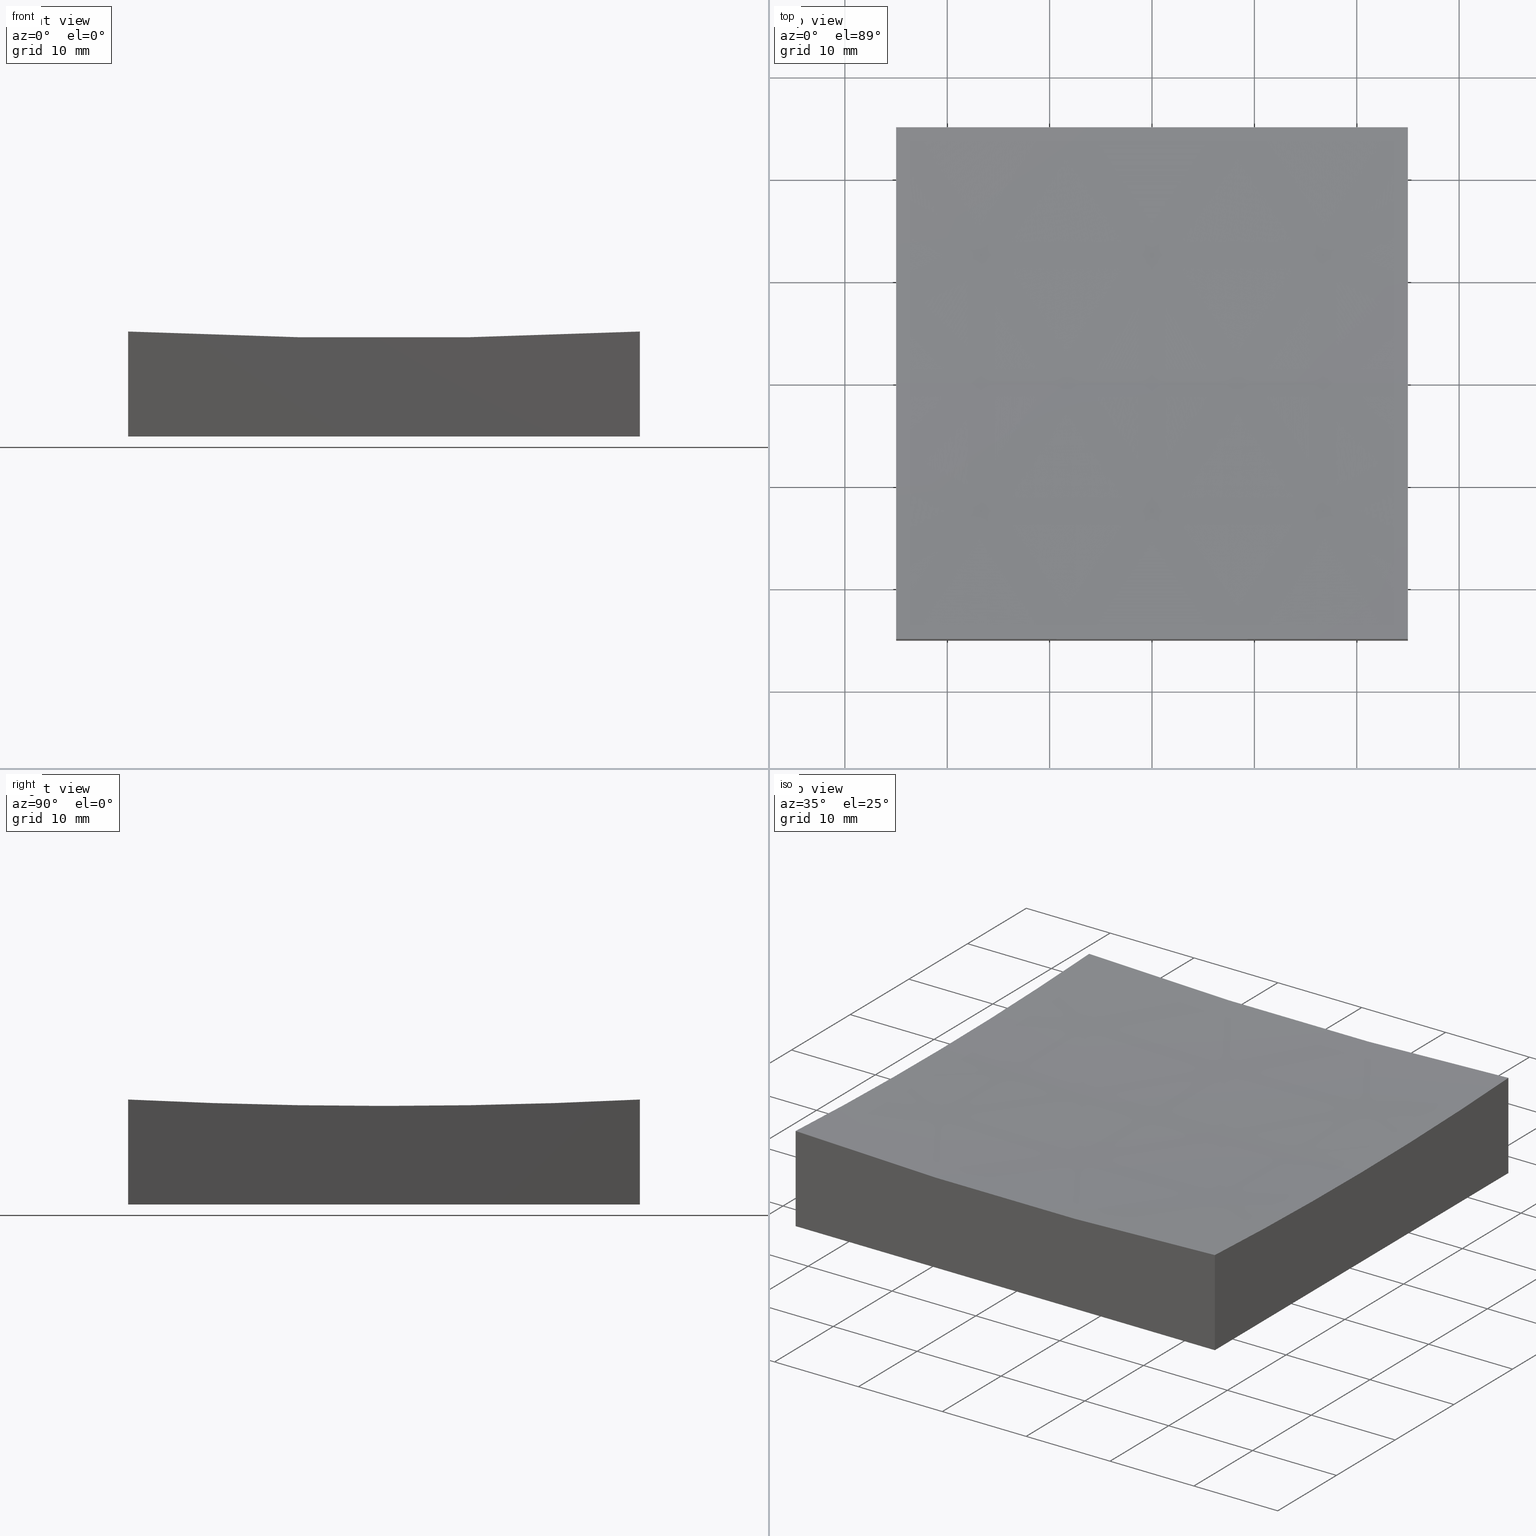
[diagram: canonical four-view strip — front | top / right | iso, engineering-drawing reading convention]
A machine part, canonical four-view strip (front | top / right | iso — engineering-drawing reading convention). The complete STEP part file that produces these views, byte-faithful:
ISO-10303-21;
HEADER;
FILE_DESCRIPTION (( 'STEP AP214' ),
    '1' );
FILE_NAME ('270055.STEP',
    '2020-06-08T05:48:22',
    ( '' ),
    ( '' ),
    'SwSTEP 2.0',
    'SolidWorks 2019',
    '' );
FILE_SCHEMA (( 'AUTOMOTIVE_DESIGN' ));
ENDSEC;

DATA;
#1 = DIRECTION ( 'NONE',  ( 0.0000000000000000000, 0.0000000000000000000, -1.000000000000000000 ) ) ;
#2 = EDGE_CURVE ( 'NONE', #209, #32, #12, .T. ) ;
#3 = AXIS2_PLACEMENT_3D ( 'NONE', #20, #79, #159 ) ;
#4 = CIRCLE ( 'NONE', #30, 499.3746088859544443 ) ;
#5 = DIRECTION ( 'NONE',  ( 1.000000000000000000, 0.0000000000000000000, 0.0000000000000000000 ) ) ;
#6 = DIRECTION ( 'NONE',  ( 1.000000000000000000, 6.938893903907228378E-17, -0.0000000000000000000 ) ) ;
#7 = AXIS2_PLACEMENT_3D ( 'NONE', #184, #92, #67 ) ;
#8 = ORIENTED_EDGE ( 'NONE', *, *, #144, .F. ) ;
#9 = VERTEX_POINT ( 'NONE', #155 ) ;
#10 = ORIENTED_EDGE ( 'NONE', *, *, #99, .F. ) ;
#11 = FACE_OUTER_BOUND ( 'NONE', #245, .T. ) ;
#12 = LINE ( 'NONE', #167, #179 ) ;
#13 = ORIENTED_EDGE ( 'NONE', *, *, #77, .T. ) ;
#14 = DIRECTION ( 'NONE',  ( -0.0000000000000000000, -0.0000000000000000000, -1.000000000000000000 ) ) ;
#15 =( NAMED_UNIT ( * ) PLANE_ANGLE_UNIT ( ) SI_UNIT ( $, .RADIAN. ) );
#16 = ORIENTED_EDGE ( 'NONE', *, *, #63, .T. ) ;
#17 = PRESENTATION_LAYER_ASSIGNMENT (  '', '', ( #190 ) ) ;
#18 = DIRECTION ( 'NONE',  ( 1.000000000000000000, 6.938893903907228378E-17, -0.0000000000000000000 ) ) ;
#19 = ORIENTED_EDGE ( 'NONE', *, *, #144, .T. ) ;
#20 = CARTESIAN_POINT ( 'NONE',  ( 6.233452207660027876E-14, 0.0000000000000000000, 509.0000000000000000 ) ) ;
#21 = LINE ( 'NONE', #41, #81 ) ;
#22 = STYLED_ITEM ( 'NONE', ( #111 ), #177 ) ;
#23 = PRODUCT_DEFINITION ( 'δ֪', '', #223, #140 ) ;
#24 =( GEOMETRIC_REPRESENTATION_CONTEXT ( 3 ) GLOBAL_UNCERTAINTY_ASSIGNED_CONTEXT ( ( #162 ) ) GLOBAL_UNIT_ASSIGNED_CONTEXT ( ( #89, #205, #224 ) ) REPRESENTATION_CONTEXT ( 'NONE', 'WORKASPACE' ) );
#25 = UNCERTAINTY_MEASURE_WITH_UNIT (LENGTH_MEASURE( 1.000000000000000082E-05 ), #200, 'distance_accuracy_value', 'NONE');
#26 = EDGE_CURVE ( 'NONE', #90, #221, #103, .T. ) ;
#27 = DIRECTION ( 'NONE',  ( -6.947583818275299433E-17, 1.000000000000000000, 0.0000000000000000000 ) ) ;
#28 = CARTESIAN_POINT ( 'NONE',  ( 0.0000000000000000000, 0.0000000000000000000, 0.0000000000000000000 ) ) ;
#29 = CARTESIAN_POINT ( 'NONE',  ( 6.233452207660027876E-14, 0.0000000000000000000, 509.0000000000000000 ) ) ;
#30 = AXIS2_PLACEMENT_3D ( 'NONE', #192, #201, #38 ) ;
#31 = VERTEX_POINT ( 'NONE', #169 ) ;
#32 = VERTEX_POINT ( 'NONE', #150 ) ;
#33 = DIRECTION ( 'NONE',  ( 1.000000000000000000, 0.0000000000000000000, 0.0000000000000000000 ) ) ;
#34 = DIRECTION ( 'NONE',  ( 6.938893903907228378E-17, -1.000000000000000000, 0.0000000000000000000 ) ) ;
#35 = ORIENTED_EDGE ( 'NONE', *, *, #123, .F. ) ;
#36 = DIRECTION ( 'NONE',  ( 1.000000000000000000, 6.938893903907228378E-17, -0.0000000000000000000 ) ) ;
#37 = DIRECTION ( 'NONE',  ( 1.000000000000000000, 6.938893903907228378E-17, -0.0000000000000000000 ) ) ;
#38 = DIRECTION ( 'NONE',  ( 0.0000000000000000000, 0.0000000000000000000, 1.000000000000000000 ) ) ;
#39 = VECTOR ( 'NONE', #252, 1000.000000000000000 ) ;
#40 = DIRECTION ( 'NONE',  ( 0.0000000000000000000, -1.000000000000000000, -0.0000000000000000000 ) ) ;
#41 = CARTESIAN_POINT ( 'NONE',  ( -25.00000000000000000, -25.00000000000000711, 50.00000000000000000 ) ) ;
#42 = CARTESIAN_POINT ( 'NONE',  ( 9.202173048582265139E-14, 0.0000000000000000000, 9.000000000000007105 ) ) ;
#43 = AXIS2_PLACEMENT_3D ( 'NONE', #168, #153, #27 ) ;
#44 = MANIFOLD_SOLID_BREP ( '�г�-��ת2', #235 ) ;
#45 = EDGE_CURVE ( 'NONE', #174, #31, #4, .T. ) ;
#46 = AXIS2_PLACEMENT_3D ( 'NONE', #28, #107, #239 ) ;
#47 = DIRECTION ( 'NONE',  ( -0.0000000000000000000, 1.000000000000000000, 0.0000000000000000000 ) ) ;
#48 = PRODUCT_RELATED_PRODUCT_CATEGORY ( 'part', '', ( #151 ) ) ;
#49 = SURFACE_SIDE_STYLE ('',( #52 ) ) ;
#50 = ORIENTED_EDGE ( 'NONE', *, *, #99, .T. ) ;
#51 = ORIENTED_EDGE ( 'NONE', *, *, #77, .F. ) ;
#52 = SURFACE_STYLE_FILL_AREA ( #82 ) ;
#53 = AXIS2_PLACEMENT_3D ( 'NONE', #121, #37, #175 ) ;
#54 = ORIENTED_EDGE ( 'NONE', *, *, #164, .F. ) ;
#55 = EDGE_LOOP ( 'NONE', ( #152, #16, #188, #51 ) ) ;
#56 = CARTESIAN_POINT ( 'NONE',  ( -25.00000000000000355, -1.734723475976811630E-15, 509.0000000000000000 ) ) ;
#57 = PLANE ( 'NONE',  #183 ) ;
#58 = ORIENTED_EDGE ( 'NONE', *, *, #2, .T. ) ;
#59 = CARTESIAN_POINT ( 'NONE',  ( -25.00000000000000355, 24.99999999999999645, 50.00000000000000000 ) ) ;
#60 = VECTOR ( 'NONE', #136, 1000.000000000000000 ) ;
#61 = DIRECTION ( 'NONE',  ( -6.947583818275299433E-17, 1.000000000000000000, 0.0000000000000000000 ) ) ;
#62 = CARTESIAN_POINT ( 'NONE',  ( -25.00000000000000000, -25.00000000000000711, 50.00000000000000000 ) ) ;
#63 = EDGE_CURVE ( 'NONE', #174, #104, #118, .T. ) ;
#64 = ADVANCED_FACE ( 'NONE', ( #100 ), #156, .F. ) ;
#65 = SURFACE_SIDE_STYLE ('',( #212 ) ) ;
#66 = ORIENTED_EDGE ( 'NONE', *, *, #120, .F. ) ;
#67 = DIRECTION ( 'NONE',  ( -1.000000000000000000, 0.0000000000000000000, -0.0000000000000000000 ) ) ;
#68 = CARTESIAN_POINT ( 'NONE',  ( 24.99999999999999645, 24.99999999999999645, 50.00000000000000000 ) ) ;
#69 = ORIENTED_EDGE ( 'NONE', *, *, #166, .T. ) ;
#70 = CARTESIAN_POINT ( 'NONE',  ( 24.99999999999999645, 24.99999999999999645, 50.00000000000000000 ) ) ;
#71 = SURFACE_STYLE_USAGE ( .BOTH. , #65 ) ;
#72 = ORIENTED_EDGE ( 'NONE', *, *, #45, .T. ) ;
#73 = DIRECTION ( 'NONE',  ( 1.224646799147353207E-16, 1.000000000000000000, -2.275299625143731854E-34 ) ) ;
#74 = ADVANCED_FACE ( 'NONE', ( #226 ), #196, .T. ) ;
#75 = CARTESIAN_POINT ( 'NONE',  ( 6.233452207660027876E-14, 0.0000000000000000000, 509.0000000000000000 ) ) ;
#76 = DIRECTION ( 'NONE',  ( -6.947583818275299433E-17, 1.000000000000000000, 0.0000000000000000000 ) ) ;
#77 = EDGE_CURVE ( 'NONE', #31, #209, #114, .T. ) ;
#78 = VECTOR ( 'NONE', #96, 1000.000000000000000 ) ;
#79 = DIRECTION ( 'NONE',  ( -0.0000000000000000000, 1.000000000000000000, 0.0000000000000000000 ) ) ;
#80 = COLOUR_RGB ( '',1.000000000000000000, 1.000000000000000000, 1.000000000000000000 ) ;
#81 = VECTOR ( 'NONE', #213, 1000.000000000000000 ) ;
#82 = FILL_AREA_STYLE ('',( #249 ) ) ;
#83 = APPLICATION_PROTOCOL_DEFINITION ( 'draft international standard', 'automotive_design', 1998, #181 ) ;
#84 = ORIENTED_EDGE ( 'NONE', *, *, #26, .T. ) ;
#85 = FACE_OUTER_BOUND ( 'NONE', #247, .T. ) ;
#86 = ORIENTED_EDGE ( 'NONE', *, *, #233, .T. ) ;
#87 = VERTEX_POINT ( 'NONE', #91 ) ;
#88 = CARTESIAN_POINT ( 'NONE',  ( -25.00000000000000000, -25.00000000000000711, 10.25156641849994621 ) ) ;
#89 =( LENGTH_UNIT ( ) NAMED_UNIT ( * ) SI_UNIT ( .MILLI., .METRE. ) );
#90 = VERTEX_POINT ( 'NONE', #173 ) ;
#91 = CARTESIAN_POINT ( 'NONE',  ( -25.00000000000000355, 3.061616997868391720E-15, 9.625391114045534380 ) ) ;
#92 = DIRECTION ( 'NONE',  ( 0.0000000000000000000, 0.0000000000000000000, -1.000000000000000000 ) ) ;
#93 = AXIS2_PLACEMENT_3D ( 'NONE', #59, #117, #154 ) ;
#94 = ORIENTED_EDGE ( 'NONE', *, *, #95, .F. ) ;
#95 = EDGE_CURVE ( 'NONE', #90, #189, #122, .T. ) ;
#96 = DIRECTION ( 'NONE',  ( 6.938893903907228378E-17, -1.000000000000000000, 0.0000000000000000000 ) ) ;
#97 = EDGE_LOOP ( 'NONE', ( #35, #127, #147, #13, #58 ) ) ;
#98 = CARTESIAN_POINT ( 'NONE',  ( -25.00000000000000000, -25.00000000000000711, 0.0000000000000000000 ) ) ;
#99 = EDGE_CURVE ( 'NONE', #104, #9, #248, .T. ) ;
#100 = FACE_OUTER_BOUND ( 'NONE', #97, .T. ) ;
#101 = VECTOR ( 'NONE', #14, 1000.000000000000000 ) ;
#102 = CIRCLE ( 'NONE', #43, 499.3746088859545011 ) ;
#103 = CIRCLE ( 'NONE', #110, 499.3746088859544443 ) ;
#104 = VERTEX_POINT ( 'NONE', #191 ) ;
#105 = CIRCLE ( 'NONE', #158, 500.0000000000000000 ) ;
#106 =( NAMED_UNIT ( * ) PLANE_ANGLE_UNIT ( ) SI_UNIT ( $, .RADIAN. ) );
#107 = DIRECTION ( 'NONE',  ( 0.0000000000000000000, 0.0000000000000000000, 1.000000000000000000 ) ) ;
#108 = ORIENTED_EDGE ( 'NONE', *, *, #2, .F. ) ;
#109 = ORIENTED_EDGE ( 'NONE', *, *, #161, .T. ) ;
#110 = AXIS2_PLACEMENT_3D ( 'NONE', #116, #112, #130 ) ;
#111 = PRESENTATION_STYLE_ASSIGNMENT (( #204 ) ) ;
#112 = DIRECTION ( 'NONE',  ( 0.0000000000000000000, 1.000000000000000000, 0.0000000000000000000 ) ) ;
#113 = ORIENTED_EDGE ( 'NONE', *, *, #197, .F. ) ;
#114 = LINE ( 'NONE', #193, #101 ) ;
#115 = CARTESIAN_POINT ( 'NONE',  ( 25.00000000000000000, -25.00000000000000711, 50.00000000000000000 ) ) ;
#116 = CARTESIAN_POINT ( 'NONE',  ( 6.233452207660027876E-14, -25.00000000000000711, 509.0000000000000000 ) ) ;
#117 = DIRECTION ( 'NONE',  ( 0.0000000000000000000, 1.000000000000000000, 0.0000000000000000000 ) ) ;
#118 = LINE ( 'NONE', #68, #60 ) ;
#119 = SPHERICAL_SURFACE ( 'NONE', #3, 500.0000000000000000 ) ;
#120 = EDGE_CURVE ( 'NONE', #189, #174, #214, .T. ) ;
#121 = CARTESIAN_POINT ( 'NONE',  ( -25.00000000000000355, 24.99999999999999645, 50.00000000000000000 ) ) ;
#122 = CIRCLE ( 'NONE', #180, 499.3746088859545011 ) ;
#123 = EDGE_CURVE ( 'NONE', #221, #32, #21, .T. ) ;
#124 = AXIS2_PLACEMENT_3D ( 'NONE', #56, #176, #139 ) ;
#125 = VECTOR ( 'NONE', #33, 1000.000000000000000 ) ;
#126 = DIRECTION ( 'NONE',  ( -6.938893903907228378E-17, 1.000000000000000000, 0.0000000000000000000 ) ) ;
#127 = ORIENTED_EDGE ( 'NONE', *, *, #164, .T. ) ;
#128 = COLOUR_RGB ( '',1.000000000000000000, 1.000000000000000000, 1.000000000000000000 ) ;
#129 = CARTESIAN_POINT ( 'NONE',  ( -25.00000000000000355, 24.99999999999999645, 0.0000000000000000000 ) ) ;
#130 = DIRECTION ( 'NONE',  ( 0.0000000000000000000, 0.0000000000000000000, 1.000000000000000000 ) ) ;
#131 = EDGE_LOOP ( 'NONE', ( #185, #19, #135, #72, #148 ) ) ;
#132 = CARTESIAN_POINT ( 'NONE',  ( 24.99999999999999645, 0.0000000000000000000, 9.625391114045534380 ) ) ;
#133 = PRESENTATION_STYLE_ASSIGNMENT (( #71 ) ) ;
#134 = CARTESIAN_POINT ( 'NONE',  ( 24.99999999999999645, 1.734723475976802756E-15, 509.0000000000000000 ) ) ;
#135 = ORIENTED_EDGE ( 'NONE', *, *, #120, .T. ) ;
#136 = DIRECTION ( 'NONE',  ( -0.0000000000000000000, -0.0000000000000000000, -1.000000000000000000 ) ) ;
#137 =( GEOMETRIC_REPRESENTATION_CONTEXT ( 3 ) GLOBAL_UNCERTAINTY_ASSIGNED_CONTEXT ( ( #238 ) ) GLOBAL_UNIT_ASSIGNED_CONTEXT ( ( #145, #106, #241 ) ) REPRESENTATION_CONTEXT ( 'NONE', 'WORKASPACE' ) );
#138 = LINE ( 'NONE', #98, #39 ) ;
#139 = DIRECTION ( 'NONE',  ( -6.947583818275299433E-17, 1.000000000000000000, 0.0000000000000000000 ) ) ;
#140 = PRODUCT_DEFINITION_CONTEXT ( 'detailed design', #217, 'design' ) ;
#141 = CIRCLE ( 'NONE', #124, 499.3746088859545011 ) ;
#142 = APPLICATION_PROTOCOL_DEFINITION ( 'draft international standard', 'automotive_design', 1998, #217 ) ;
#143 = AXIS2_PLACEMENT_3D ( 'NONE', #29, #47, #5 ) ;
#144 = EDGE_CURVE ( 'NONE', #186, #189, #218, .T. ) ;
#145 =( LENGTH_UNIT ( ) NAMED_UNIT ( * ) SI_UNIT ( .MILLI., .METRE. ) );
#146 = PLANE ( 'NONE',  #7 ) ;
#147 = ORIENTED_EDGE ( 'NONE', *, *, #211, .T. ) ;
#148 = ORIENTED_EDGE ( 'NONE', *, *, #211, .F. ) ;
#149 = ADVANCED_FACE ( 'NONE', ( #228 ), #119, .F. ) ;
#150 = CARTESIAN_POINT ( 'NONE',  ( -25.00000000000000000, -25.00000000000000711, 0.0000000000000000000 ) ) ;
#151 = PRODUCT ( '270055', '270055', '', ( #219 ) ) ;
#152 = ORIENTED_EDGE ( 'NONE', *, *, #45, .F. ) ;
#153 = DIRECTION ( 'NONE',  ( 1.000000000000000000, 6.938893903907228378E-17, -0.0000000000000000000 ) ) ;
#154 = DIRECTION ( 'NONE',  ( 0.0000000000000000000, -0.0000000000000000000, 1.000000000000000000 ) ) ;
#155 = CARTESIAN_POINT ( 'NONE',  ( 25.00000000000000000, -25.00000000000000711, 0.0000000000000000000 ) ) ;
#156 = PLANE ( 'NONE',  #53 ) ;
#157 = CARTESIAN_POINT ( 'NONE',  ( 6.233452207660027876E-14, 0.0000000000000000000, 509.0000000000000000 ) ) ;
#158 = AXIS2_PLACEMENT_3D ( 'NONE', #157, #73, #225 ) ;
#159 = DIRECTION ( 'NONE',  ( 1.000000000000000000, 0.0000000000000000000, 0.0000000000000000000 ) ) ;
#160 = MECHANICAL_DESIGN_GEOMETRIC_PRESENTATION_REPRESENTATION (  '', ( #190 ), #24 ) ;
#161 = EDGE_CURVE ( 'NONE', #32, #9, #138, .T. ) ;
#162 = UNCERTAINTY_MEASURE_WITH_UNIT (LENGTH_MEASURE( 1.000000000000000082E-05 ), #89, 'distance_accuracy_value', 'NONE');
#163 = PRESENTATION_LAYER_ASSIGNMENT (  '', '', ( #22 ) ) ;
#164 = EDGE_CURVE ( 'NONE', #221, #87, #141, .T. ) ;
#165 = SPHERICAL_SURFACE ( 'NONE', #143, 500.0000000000000000 ) ;
#166 = EDGE_CURVE ( 'NONE', #186, #87, #105, .T. ) ;
#167 = CARTESIAN_POINT ( 'NONE',  ( -25.00000000000000355, 24.99999999999999645, 0.0000000000000000000 ) ) ;
#168 = CARTESIAN_POINT ( 'NONE',  ( -25.00000000000000355, -1.734723475976811630E-15, 509.0000000000000000 ) ) ;
#169 = CARTESIAN_POINT ( 'NONE',  ( -25.00000000000000711, 24.99999999999999645, 10.25156641849989114 ) ) ;
#170 = ORIENTED_EDGE ( 'NONE', *, *, #197, .T. ) ;
#171 = LINE ( 'NONE', #129, #125 ) ;
#172 = ORIENTED_EDGE ( 'NONE', *, *, #63, .F. ) ;
#173 = CARTESIAN_POINT ( 'NONE',  ( 25.00000000000000000, -25.00000000000000711, 10.25156641849989114 ) ) ;
#174 = VERTEX_POINT ( 'NONE', #178 ) ;
#175 = DIRECTION ( 'NONE',  ( -6.938893903907228378E-17, 1.000000000000000000, 0.0000000000000000000 ) ) ;
#176 = DIRECTION ( 'NONE',  ( 1.000000000000000000, 6.938893903907228378E-17, -0.0000000000000000000 ) ) ;
#177 = ADVANCED_BREP_SHAPE_REPRESENTATION ( '270055', ( #44, #46 ), #240 ) ;
#178 = CARTESIAN_POINT ( 'NONE',  ( 24.99999999999999645, 24.99999999999999645, 10.25156641849989114 ) ) ;
#179 = VECTOR ( 'NONE', #34, 1000.000000000000000 ) ;
#180 = AXIS2_PLACEMENT_3D ( 'NONE', #134, #18, #61 ) ;
#181 = APPLICATION_CONTEXT ( 'automotive_design' ) ;
#182 = ORIENTED_EDGE ( 'NONE', *, *, #123, .T. ) ;
#183 = AXIS2_PLACEMENT_3D ( 'NONE', #62, #216, #207 ) ;
#184 = CARTESIAN_POINT ( 'NONE',  ( 0.0000000000000000000, 0.0000000000000000000, 0.0000000000000000000 ) ) ;
#185 = ORIENTED_EDGE ( 'NONE', *, *, #166, .F. ) ;
#186 = VERTEX_POINT ( 'NONE', #42 ) ;
#187 = DIRECTION ( 'NONE',  ( -0.0000000000000000000, -0.0000000000000000000, -1.000000000000000000 ) ) ;
#188 = ORIENTED_EDGE ( 'NONE', *, *, #233, .F. ) ;
#189 = VERTEX_POINT ( 'NONE', #132 ) ;
#190 = STYLED_ITEM ( 'NONE', ( #133 ), #44 ) ;
#191 = CARTESIAN_POINT ( 'NONE',  ( 24.99999999999999645, 24.99999999999999645, 0.0000000000000000000 ) ) ;
#192 = CARTESIAN_POINT ( 'NONE',  ( 6.233452207660027876E-14, 24.99999999999999645, 509.0000000000000000 ) ) ;
#193 = CARTESIAN_POINT ( 'NONE',  ( -25.00000000000000355, 24.99999999999999645, 50.00000000000000000 ) ) ;
#194 = ORIENTED_EDGE ( 'NONE', *, *, #95, .T. ) ;
#195 = ADVANCED_FACE ( 'NONE', ( #230 ), #57, .F. ) ;
#196 = PLANE ( 'NONE',  #93 ) ;
#197 = EDGE_CURVE ( 'NONE', #90, #9, #210, .T. ) ;
#198 = VECTOR ( 'NONE', #187, 1000.000000000000000 ) ;
#199 = ADVANCED_FACE ( 'NONE', ( #85 ), #246, .T. ) ;
#200 =( LENGTH_UNIT ( ) NAMED_UNIT ( * ) SI_UNIT ( .MILLI., .METRE. ) );
#201 = DIRECTION ( 'NONE',  ( 0.0000000000000000000, 1.000000000000000000, 0.0000000000000000000 ) ) ;
#202 = EDGE_LOOP ( 'NONE', ( #113, #84, #182, #109 ) ) ;
#203 = AXIS2_PLACEMENT_3D ( 'NONE', #251, #36, #76 ) ;
#204 = SURFACE_STYLE_USAGE ( .BOTH. , #49 ) ;
#205 =( NAMED_UNIT ( * ) PLANE_ANGLE_UNIT ( ) SI_UNIT ( $, .RADIAN. ) );
#206 = ORIENTED_EDGE ( 'NONE', *, *, #161, .F. ) ;
#207 = DIRECTION ( 'NONE',  ( 0.0000000000000000000, -0.0000000000000000000, 1.000000000000000000 ) ) ;
#208 =( NAMED_UNIT ( * ) SI_UNIT ( $, .STERADIAN. ) SOLID_ANGLE_UNIT ( ) );
#209 = VERTEX_POINT ( 'NONE', #220 ) ;
#210 = LINE ( 'NONE', #115, #198 ) ;
#211 = EDGE_CURVE ( 'NONE', #87, #31, #102, .T. ) ;
#212 = SURFACE_STYLE_FILL_AREA ( #250 ) ;
#213 = DIRECTION ( 'NONE',  ( -0.0000000000000000000, -0.0000000000000000000, -1.000000000000000000 ) ) ;
#214 = CIRCLE ( 'NONE', #203, 499.3746088859545011 ) ;
#215 = CARTESIAN_POINT ( 'NONE',  ( 24.99999999999999645, 24.99999999999999645, 0.0000000000000000000 ) ) ;
#216 = DIRECTION ( 'NONE',  ( 0.0000000000000000000, 1.000000000000000000, 0.0000000000000000000 ) ) ;
#217 = APPLICATION_CONTEXT ( 'automotive_design' ) ;
#218 = CIRCLE ( 'NONE', #234, 500.0000000000000000 ) ;
#219 = PRODUCT_CONTEXT ( 'NONE', #181, 'mechanical' ) ;
#220 = CARTESIAN_POINT ( 'NONE',  ( -25.00000000000000355, 24.99999999999999645, 0.0000000000000000000 ) ) ;
#221 = VERTEX_POINT ( 'NONE', #88 ) ;
#222 = EDGE_LOOP ( 'NONE', ( #86, #50, #206, #108 ) ) ;
#223 = PRODUCT_DEFINITION_FORMATION_WITH_SPECIFIED_SOURCE ( '�κ�', '', #151, .NOT_KNOWN. ) ;
#224 =( NAMED_UNIT ( * ) SI_UNIT ( $, .STERADIAN. ) SOLID_ANGLE_UNIT ( ) );
#225 = DIRECTION ( 'NONE',  ( -1.000000000000000000, 1.224646799147353207E-16, 0.0000000000000000000 ) ) ;
#226 = FACE_OUTER_BOUND ( 'NONE', #55, .T. ) ;
#227 = ADVANCED_FACE ( 'NONE', ( #11 ), #165, .F. ) ;
#228 = FACE_OUTER_BOUND ( 'NONE', #131, .T. ) ;
#229 = AXIS2_PLACEMENT_3D ( 'NONE', #70, #6, #126 ) ;
#230 = FACE_OUTER_BOUND ( 'NONE', #202, .T. ) ;
#231 = MECHANICAL_DESIGN_GEOMETRIC_PRESENTATION_REPRESENTATION (  '', ( #22 ), #137 ) ;
#232 = ADVANCED_FACE ( 'NONE', ( #243 ), #146, .T. ) ;
#233 = EDGE_CURVE ( 'NONE', #209, #104, #171, .T. ) ;
#234 = AXIS2_PLACEMENT_3D ( 'NONE', #75, #40, #1 ) ;
#235 = CLOSED_SHELL ( 'NONE', ( #227, #74, #64, #195, #199, #232, #149 ) ) ;
#236 = SHAPE_DEFINITION_REPRESENTATION ( #237, #177 ) ;
#237 = PRODUCT_DEFINITION_SHAPE ( 'NONE', 'NONE',  #23 ) ;
#238 = UNCERTAINTY_MEASURE_WITH_UNIT (LENGTH_MEASURE( 1.000000000000000082E-05 ), #145, 'distance_accuracy_value', 'NONE');
#239 = DIRECTION ( 'NONE',  ( 1.000000000000000000, 0.0000000000000000000, 0.0000000000000000000 ) ) ;
#240 =( GEOMETRIC_REPRESENTATION_CONTEXT ( 3 ) GLOBAL_UNCERTAINTY_ASSIGNED_CONTEXT ( ( #25 ) ) GLOBAL_UNIT_ASSIGNED_CONTEXT ( ( #200, #15, #208 ) ) REPRESENTATION_CONTEXT ( 'NONE', 'WORKASPACE' ) );
#241 =( NAMED_UNIT ( * ) SI_UNIT ( $, .STERADIAN. ) SOLID_ANGLE_UNIT ( ) );
#242 = FILL_AREA_STYLE_COLOUR ( '', #80 ) ;
#243 = FACE_OUTER_BOUND ( 'NONE', #222, .T. ) ;
#244 = ORIENTED_EDGE ( 'NONE', *, *, #26, .F. ) ;
#245 = EDGE_LOOP ( 'NONE', ( #8, #69, #54, #244, #194 ) ) ;
#246 = PLANE ( 'NONE',  #229 ) ;
#247 = EDGE_LOOP ( 'NONE', ( #94, #170, #10, #172, #66 ) ) ;
#248 = LINE ( 'NONE', #215, #78 ) ;
#249 = FILL_AREA_STYLE_COLOUR ( '', #128 ) ;
#250 = FILL_AREA_STYLE ('',( #242 ) ) ;
#251 = CARTESIAN_POINT ( 'NONE',  ( 24.99999999999999645, 1.734723475976802756E-15, 509.0000000000000000 ) ) ;
#252 = DIRECTION ( 'NONE',  ( 1.000000000000000000, 0.0000000000000000000, 0.0000000000000000000 ) ) ;
ENDSEC;
END-ISO-10303-21;
